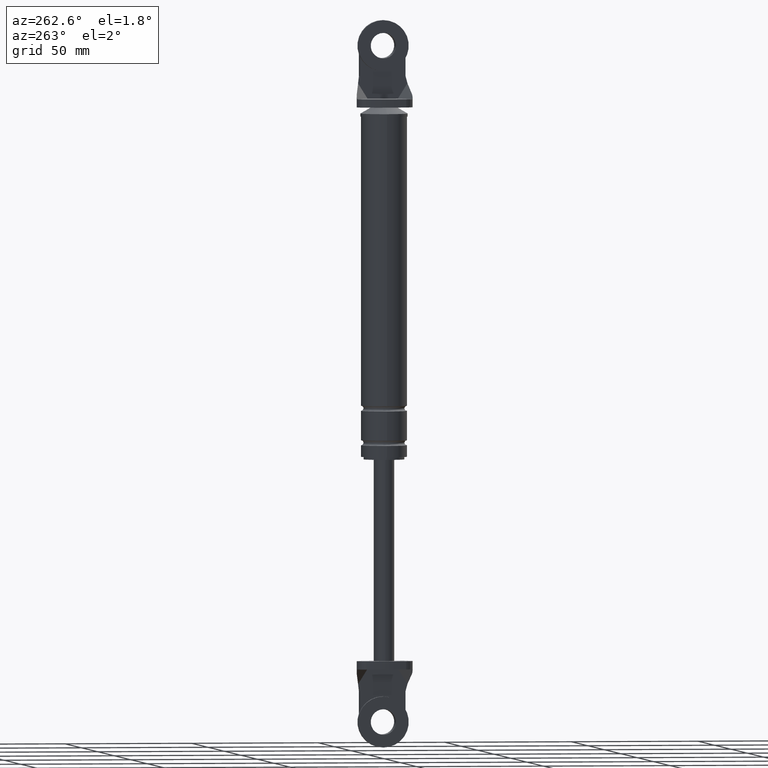
[diagram: clean part render]
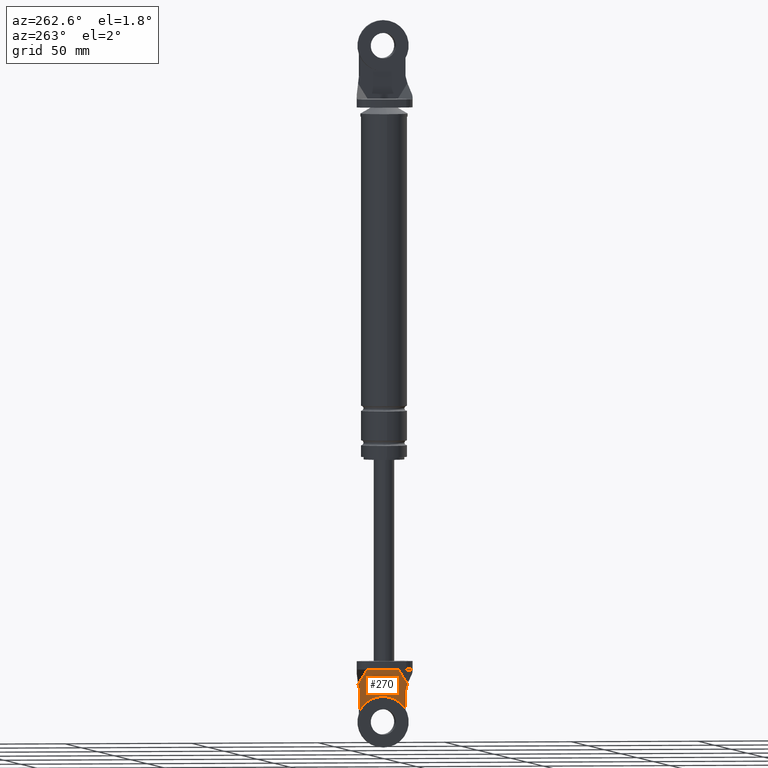
[diagram: same view with one face highlighted and labeled with its STEP entity id]
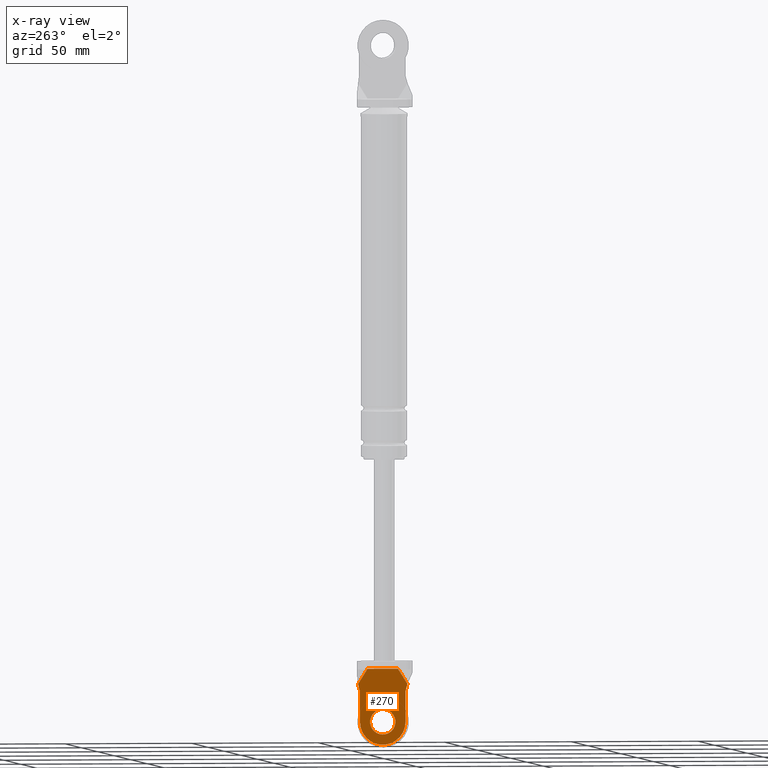
[diagram: x-ray of the same camera — body ghosted, the highlighted face saturated]
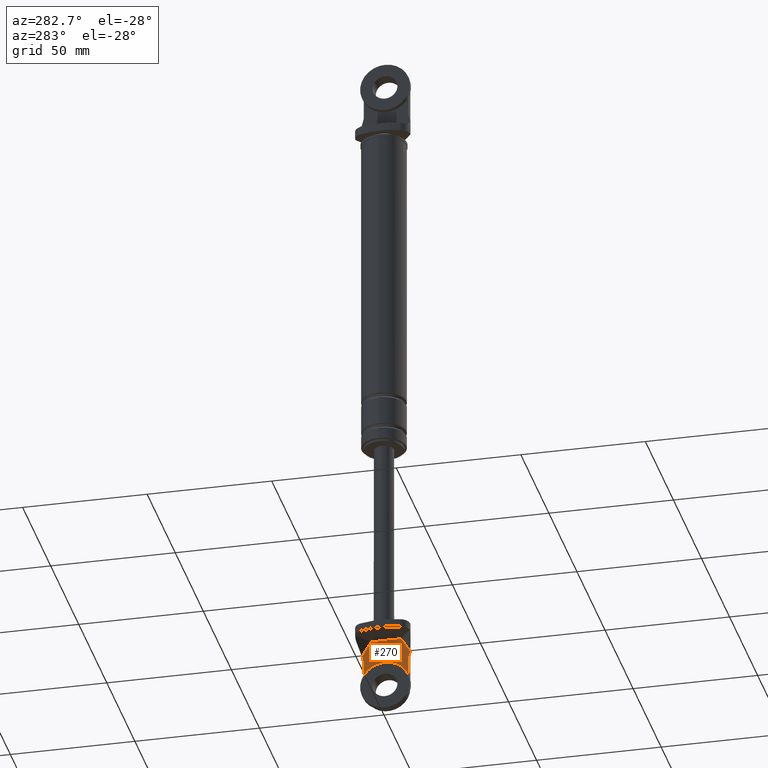
[diagram: same view with one face highlighted and labeled with its STEP entity id]
A machine part, auxiliary view. The second image highlights one B-rep face of the part: STEP entity #270.
The next image is the same camera in x-ray: the body ghosted, the highlighted face saturated — about 0% of this face is hidden behind the body in this view.
A second angle (auxiliary view) of the same face is appended — the face is thin or edge-on in the first view.
In plain terms, the highlighted planar face has unit normal (1, 0, 0).
Its self-contained STEP definition (entity closure, byte-faithful):
#270=ADVANCED_FACE('',(#956,#957),#955,.F.);
#955=PLANE('',#1684);
#956=FACE_OUTER_BOUND('',#1685,.T.);
#957=FACE_BOUND('',#1686,.T.);
#1681=CARTESIAN_POINT('',(3.80000300000E+000,-1.16951792999E+001,-1.63980015732E+002));
#1682=DIRECTION('',(1.00000000000E+000,0.00000000000E+000,0.00000000000E+000));
#1683=DIRECTION('',(0.00000000000E+000,1.00000000000E+000,0.00000000000E+000));
#1684=AXIS2_PLACEMENT_3D('',#1681,#1682,#1683);
#1685=EDGE_LOOP('',(#2073,#2074,#2075,#2076,#2077,#2078,#2079,#2080,#2081,#2082));
#1686=EDGE_LOOP('',(#2083,#2084));
#2073=ORIENTED_EDGE('',*,*,#2323,.T.);
#2074=ORIENTED_EDGE('',*,*,#2329,.F.);
#2075=ORIENTED_EDGE('',*,*,#2330,.F.);
#2076=ORIENTED_EDGE('',*,*,#2309,.T.);
#2077=ORIENTED_EDGE('',*,*,#2312,.T.);
#2078=ORIENTED_EDGE('',*,*,#2305,.T.);
#2079=ORIENTED_EDGE('',*,*,#2331,.F.);
#2080=ORIENTED_EDGE('',*,*,#2332,.F.);
#2081=ORIENTED_EDGE('',*,*,#2327,.T.);
#2082=ORIENTED_EDGE('',*,*,#2325,.F.);
#2083=ORIENTED_EDGE('',*,*,#2333,.T.);
#2084=ORIENTED_EDGE('',*,*,#2334,.T.);
#2305=EDGE_CURVE('',#3337,#3330,#3338,.T.);
#2309=EDGE_CURVE('',#3365,#3358,#3366,.T.);
#2312=EDGE_CURVE('',#3358,#3337,#3385,.T.);
#2323=EDGE_CURVE('',#3458,#3451,#3459,.T.);
#2325=EDGE_CURVE('',#3458,#3471,#3472,.T.);
#2327=EDGE_CURVE('',#3484,#3471,#3485,.T.);
#2329=EDGE_CURVE('',#3497,#3451,#3498,.T.);
#2330=EDGE_CURVE('',#3365,#3497,#3504,.T.);
#2331=EDGE_CURVE('',#3510,#3330,#3511,.T.);
#2332=EDGE_CURVE('',#3484,#3510,#3517,.T.);
#2333=EDGE_CURVE('',#3523,#3524,#3525,.T.);
#2334=EDGE_CURVE('',#3524,#3523,#3531,.T.);
#3330=VERTEX_POINT('',#4271);
#3337=VERTEX_POINT('',#4275);
#3338=LINE('',#4276,#4277);
#3358=VERTEX_POINT('',#4287);
#3365=VERTEX_POINT('',#4291);
#3366=LINE('',#4292,#4293);
#3385=LINE('',#4303,#4304);
#3451=VERTEX_POINT('',#4341);
#3458=VERTEX_POINT('',#4345);
#3459=LINE('',#4346,#4347);
#3471=VERTEX_POINT('',#4352);
#3472=CIRCLE('',#4356,9.00000000000E+000);
#3484=VERTEX_POINT('',#4360);
#3485=LINE('',#4361,#4362);
#3497=VERTEX_POINT('',#4367);
#3498=LINE('',#4368,#4369);
#3504=LINE('',#4371,#4372);
#3510=VERTEX_POINT('',#4374);
#3511=LINE('',#4375,#4376);
#3517=LINE('',#4378,#4379);
#3523=VERTEX_POINT('',#4381);
#3524=VERTEX_POINT('',#4382);
#3525=CIRCLE('',#4386,5.00000000000E+000);
#3531=CIRCLE('',#4390,5.00000000000E+000);
#4271=CARTESIAN_POINT('',(3.80000300000E+000,9.74598274994E+000,-1.37193590612E+002));
#4275=CARTESIAN_POINT('',(3.80000300000E+000,6.00000000000E+000,-1.31200012000E+002));
#4276=CARTESIAN_POINT('',(3.80000300000E+000,6.00000000000E+000,-1.31200012000E+002));
#4277=VECTOR('',#4278,7.06791138451E+000);
#4278=DIRECTION('',(0.00000000000E+000,5.29998544994E-001,-8.47998550886E-001));
#4287=CARTESIAN_POINT('',(3.80000300000E+000,-6.00000000000E+000,-1.31200012000E+002));
#4291=CARTESIAN_POINT('',(3.80000300000E+000,-9.74598274994E+000,-1.37193590612E+002));
#4292=CARTESIAN_POINT('',(3.80000300000E+000,-9.74598274994E+000,-1.37193590612E+002));
#4293=VECTOR('',#4294,7.06791138451E+000);
#4294=DIRECTION('',(0.00000000000E+000,5.29998544994E-001,8.47998550886E-001));
#4303=CARTESIAN_POINT('',(3.80000300000E+000,-6.00000000000E+000,-1.31200012000E+002));
#4304=VECTOR('',#4305,1.20000000000E+001);
#4305=DIRECTION('',(0.00000000000E+000,1.00000000000E+000,0.00000000000E+000));
#4341=CARTESIAN_POINT('',(3.80000300000E+000,-9.00000000000E+000,-1.40000015000E+002));
#4345=CARTESIAN_POINT('',(3.80000300000E+000,-9.00000000000E+000,-1.52000014215E+002));
#4346=CARTESIAN_POINT('',(3.80000300000E+000,-9.00000000000E+000,-1.52000014215E+002));
#4347=VECTOR('',#4348,1.19999992146E+001);
#4348=DIRECTION('',(0.00000000000E+000,0.00000000000E+000,1.00000000000E+000));
#4352=CARTESIAN_POINT('',(3.80000300000E+000,9.00000000000E+000,-1.52000015000E+002));
#4353=CARTESIAN_POINT('',(3.80000300000E+000,3.58204186421E-014,-1.52000015000E+002));
#4354=DIRECTION('',(1.00000000000E+000,0.00000000000E+000,0.00000000000E+000));
#4355=DIRECTION('',(-0.00000000000E+000,-0.00000000000E+000,1.00000000000E+000));
#4356=AXIS2_PLACEMENT_3D('',#4353,#4354,#4355);
#4360=CARTESIAN_POINT('',(3.80000300000E+000,9.00000000000E+000,-1.40000015000E+002));
#4361=CARTESIAN_POINT('',(3.80000300000E+000,9.00000000000E+000,-1.40000015000E+002));
#4362=VECTOR('',#4363,1.20000000000E+001);
#4363=DIRECTION('',(0.00000000000E+000,0.00000000000E+000,-1.00000000000E+000));
#4367=CARTESIAN_POINT('',(3.80000300000E+000,-9.74598274994E+000,-1.37215969476E+002));
#4368=CARTESIAN_POINT('',(3.80000300000E+000,-9.74598274994E+000,-1.37215969476E+002));
#4369=VECTOR('',#4370,2.88225601652E+000);
#4370=DIRECTION('',(0.00000000000E+000,2.58819045103E-001,-9.65925826289E-001));
#4371=CARTESIAN_POINT('',(3.80000300000E+000,-9.74598274994E+000,-1.37193590612E+002));
#4372=VECTOR('',#4373,2.23788638129E-002);
#4373=DIRECTION('',(0.00000000000E+000,0.00000000000E+000,-1.00000000000E+000));
#4374=CARTESIAN_POINT('',(3.80000300000E+000,9.74598274994E+000,-1.37215969476E+002));
#4375=CARTESIAN_POINT('',(3.80000300000E+000,9.74598274994E+000,-1.37215969476E+002));
#4376=VECTOR('',#4377,2.23788638136E-002);
#4377=DIRECTION('',(0.00000000000E+000,0.00000000000E+000,1.00000000000E+000));
#4378=CARTESIAN_POINT('',(3.80000300000E+000,9.00000000000E+000,-1.40000015000E+002));
#4379=VECTOR('',#4380,2.88225601652E+000);
#4380=DIRECTION('',(0.00000000000E+000,2.58819045103E-001,9.65925826289E-001));
#4381=CARTESIAN_POINT('',(3.80000300000E+000,3.58204186421E-014,-1.57000015000E+002));
#4382=CARTESIAN_POINT('',(3.80000300000E+000,3.58231962612E-014,-1.47000015000E+002));
#4383=CARTESIAN_POINT('',(3.80000300000E+000,3.58204186421E-014,-1.52000015000E+002));
#4384=DIRECTION('',(1.00000000000E+000,0.00000000000E+000,0.00000000000E+000));
#4385=DIRECTION('',(0.00000000000E+000,-1.22460635382E-016,-1.00000000000E+000));
#4386=AXIS2_PLACEMENT_3D('',#4383,#4384,#4385);
#4387=CARTESIAN_POINT('',(3.80000300000E+000,3.58204186421E-014,-1.52000015000E+002));
#4388=DIRECTION('',(1.00000000000E+000,0.00000000000E+000,0.00000000000E+000));
#4389=DIRECTION('',(0.00000000000E+000,-1.22460635382E-016,-1.00000000000E+000));
#4390=AXIS2_PLACEMENT_3D('',#4387,#4388,#4389);